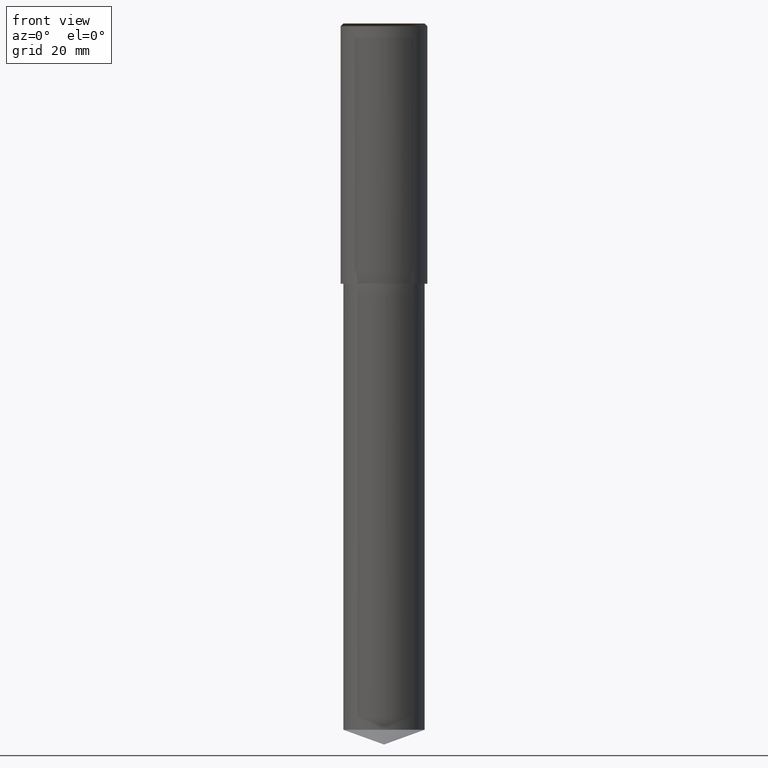
[diagram: clean part render]
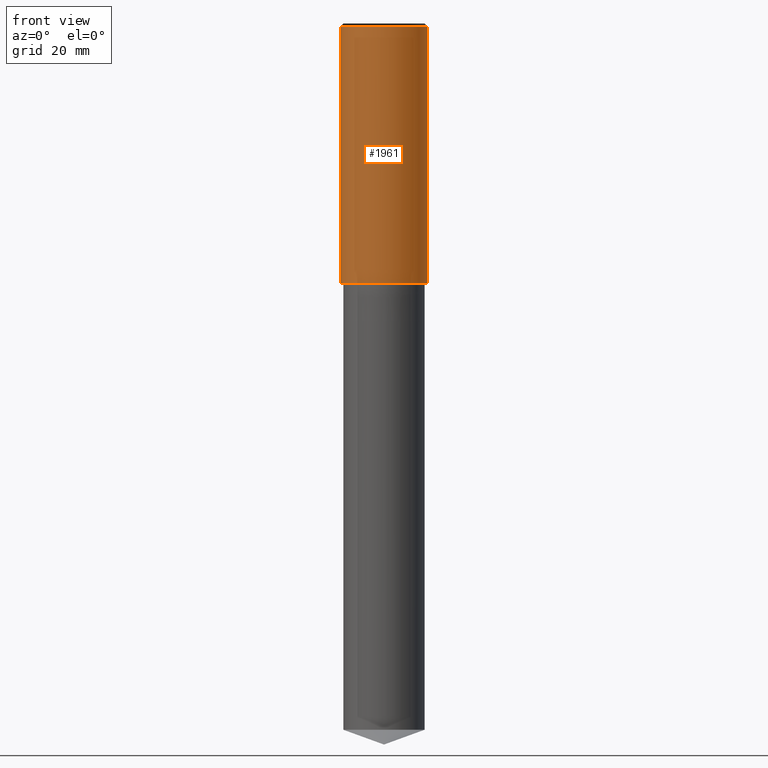
[diagram: same view with one face highlighted and labeled with its STEP entity id]
A machine part, front view. The second image highlights one B-rep face of the part: STEP entity #1961.
In plain terms, the highlighted face is a freeform B-spline surface patch.
Its self-contained STEP definition (entity closure, byte-faithful):
#1590=CARTESIAN_POINT('',(8.0,0.0,0.0));
#1594=CARTESIAN_POINT('',(-8.0,0.0,0.0));
#1595=CARTESIAN_POINT('',(8.0,0.0,47.5));
#1599=CARTESIAN_POINT('',(-8.0,0.0,47.5));
#1612=CARTESIAN_POINT('',(-8.0,-8.0,0.0));
#1613=CARTESIAN_POINT('',(0.0,-8.0,0.0));
#1614=CARTESIAN_POINT('',(8.0,-8.0,0.0));
#1615=CARTESIAN_POINT('',(-8.0,-8.0,47.5));
#1616=CARTESIAN_POINT('',(0.0,-8.0,47.5));
#1617=CARTESIAN_POINT('',(8.0,-8.0,47.5));
#1942=(
BOUNDED_SURFACE()
B_SPLINE_SURFACE(1,2,(
(#1594,#1612,#1613,#1614,#1590),
(#1599,#1615,#1616,#1617,#1595)
), .UNSPECIFIED.,.F.,.F.,.F.)
B_SPLINE_SURFACE_WITH_KNOTS((2,2),(3,2,3),(
0.0,1.0),(
0.0,0.5,1.0), .UNSPECIFIED.)
GEOMETRIC_REPRESENTATION_ITEM()
RATIONAL_B_SPLINE_SURFACE(((1.0,0.707106781187,1.0,0.707106781187,1.0),
(1.0,0.707106781187,1.0,0.707106781187,1.0)
))
REPRESENTATION_ITEM('')
SURFACE()
);
#1943=(
BOUNDED_CURVE()
B_SPLINE_CURVE(2,(#1590,#1614,#1613,#1612,#1594),.UNSPECIFIED.,.F.,.F.)
B_SPLINE_CURVE_WITH_KNOTS((3,2,3),
(0.0,0.5,1.0),.UNSPECIFIED.)
CURVE()
GEOMETRIC_REPRESENTATION_ITEM()
RATIONAL_B_SPLINE_CURVE((1.0,0.707106781187,1.0,0.707106781187,1.0))
REPRESENTATION_ITEM('')
);
#1944=(
BOUNDED_CURVE()
B_SPLINE_CURVE(1,(#1594,#1599),.UNSPECIFIED.,.F.,.F.)
B_SPLINE_CURVE_WITH_KNOTS((2,2),
(0.0,1.0),.UNSPECIFIED.)
CURVE()
GEOMETRIC_REPRESENTATION_ITEM()
RATIONAL_B_SPLINE_CURVE((1.0,1.0))
REPRESENTATION_ITEM('')
);
#1945=(
BOUNDED_CURVE()
B_SPLINE_CURVE(2,(#1599,#1615,#1616,#1617,#1595),.UNSPECIFIED.,.F.,.F.)
B_SPLINE_CURVE_WITH_KNOTS((3,2,3),
(0.0,0.5,1.0),.UNSPECIFIED.)
CURVE()
GEOMETRIC_REPRESENTATION_ITEM()
RATIONAL_B_SPLINE_CURVE((1.0,0.707106781187,1.0,0.707106781187,1.0))
REPRESENTATION_ITEM('')
);
#1946=(
BOUNDED_CURVE()
B_SPLINE_CURVE(1,(#1595,#1590),.UNSPECIFIED.,.F.,.F.)
B_SPLINE_CURVE_WITH_KNOTS((2,2),
(0.0,1.0),.UNSPECIFIED.)
CURVE()
GEOMETRIC_REPRESENTATION_ITEM()
RATIONAL_B_SPLINE_CURVE((1.0,1.0))
REPRESENTATION_ITEM('')
);
#1947=VERTEX_POINT('',#1590);
#1948=VERTEX_POINT('',#1594);
#1949=VERTEX_POINT('',#1595);
#1950=VERTEX_POINT('',#1599);
#1951=EDGE_CURVE('',#1947,#1948,#1943,.T.);
#1952=EDGE_CURVE('',#1948,#1950,#1944,.T.);
#1953=EDGE_CURVE('',#1950,#1949,#1945,.T.);
#1954=EDGE_CURVE('',#1949,#1947,#1946,.T.);
#1955=ORIENTED_EDGE('',*,*,#1951,.T.);
#1956=ORIENTED_EDGE('',*,*,#1952,.T.);
#1957=ORIENTED_EDGE('',*,*,#1953,.T.);
#1958=ORIENTED_EDGE('',*,*,#1954,.T.);
#1959=EDGE_LOOP('',(#1955,#1956,#1957,#1958));
#1960=FACE_OUTER_BOUND('',#1959,.T.);
#1961=ADVANCED_FACE('',(#1960),#1942,.T.);